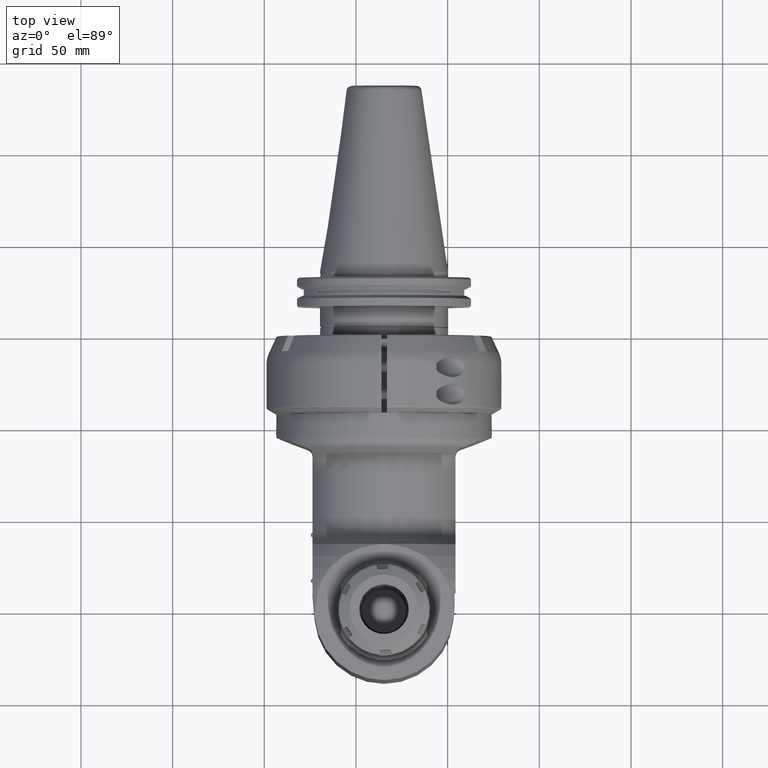
[diagram: clean part render]
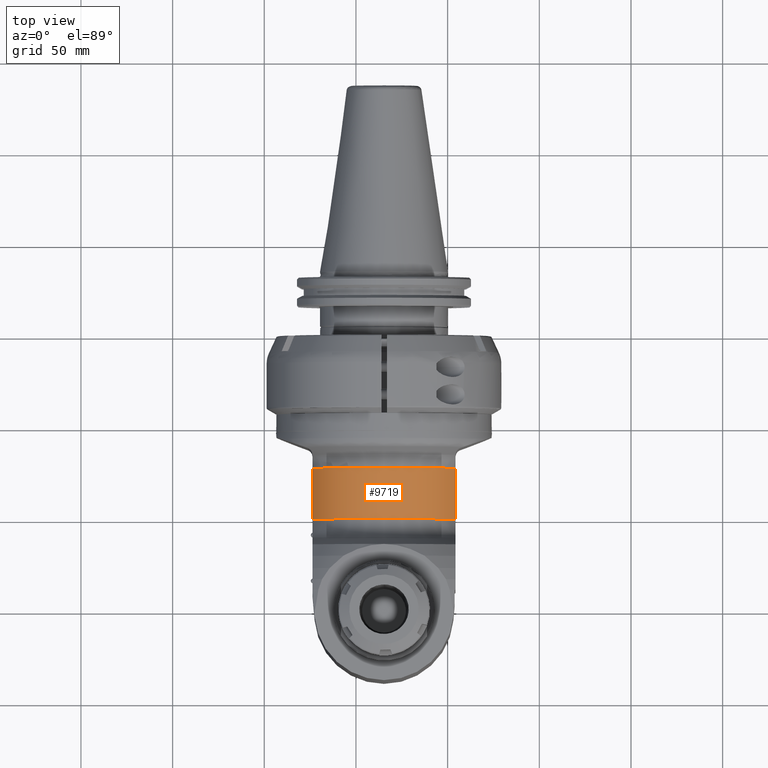
[diagram: same view with one face highlighted and labeled with its STEP entity id]
A machine part, top view. The second image highlights one B-rep face of the part: STEP entity #9719.
In plain terms, the highlighted cylindrical surface (partial cylindrical patch) has radius 42.5 mm, axis along (-0, 1, 0).
Its self-contained STEP definition (entity closure, byte-faithful):
#728=CYLINDRICAL_SURFACE('',#10457,42.5);
#892=FACE_OUTER_BOUND('',#1488,.T.);
#1488=EDGE_LOOP('',(#6531,#6532,#6533,#6534));
#2150=LINE('',#14896,#2784);
#2157=LINE('',#14992,#2791);
#2784=VECTOR('',#11686,27.78976786872);
#2791=VECTOR('',#11703,27.78976786872);
#3428=CIRCLE('',#10451,42.5);
#3433=CIRCLE('',#10458,42.5);
#3994=VERTEX_POINT('',#14867);
#3995=VERTEX_POINT('',#14880);
#3996=VERTEX_POINT('',#14895);
#4018=VERTEX_POINT('',#14991);
#4978=EDGE_CURVE('',#3994,#3995,#3428,.T.);
#4980=EDGE_CURVE('',#3996,#3995,#2150,.T.);
#5003=EDGE_CURVE('',#3994,#4018,#2157,.T.);
#5004=EDGE_CURVE('',#3996,#4018,#3433,.T.);
#6531=ORIENTED_EDGE('',*,*,#4978,.F.);
#6532=ORIENTED_EDGE('',*,*,#5003,.T.);
#6533=ORIENTED_EDGE('',*,*,#5004,.F.);
#6534=ORIENTED_EDGE('',*,*,#4980,.T.);
#9719=ADVANCED_FACE('',(#892),#728,.T.);
#10451=AXIS2_PLACEMENT_3D('',#14881,#11682,#11683);
#10457=AXIS2_PLACEMENT_3D('',#14990,#11701,#11702);
#10458=AXIS2_PLACEMENT_3D('',#14993,#11704,#11705);
#11682=DIRECTION('center_axis',(-1.,0.,0.));
#11683=DIRECTION('ref_axis',(0.,-0.397396370683616,-0.917647058823538));
#11686=DIRECTION('',(-1.,0.,0.));
#11701=DIRECTION('center_axis',(-1.,0.,0.));
#11702=DIRECTION('ref_axis',(0.,-1.,3.21624529935327E-16));
#11703=DIRECTION('',(1.,0.,0.));
#11704=DIRECTION('center_axis',(1.,0.,0.));
#11705=DIRECTION('ref_axis',(0.,-1.,0.));
#14867=CARTESIAN_POINT('',(31.79063844602,-16.88934575405,-39.));
#14880=CARTESIAN_POINT('',(31.79063844602,-16.88934575405,39.));
#14881=CARTESIAN_POINT('Origin',(31.79063844602,0.,0.));
#14895=CARTESIAN_POINT('',(59.58040631473,-16.88934575405,39.));
#14896=CARTESIAN_POINT('',(59.58040631473,-16.88934575405,39.));
#14990=CARTESIAN_POINT('Origin',(42.5,0.,0.));
#14991=CARTESIAN_POINT('',(59.58040631473,-16.88934575405,-39.));
#14992=CARTESIAN_POINT('',(31.79063844602,-16.88934575405,-39.));
#14993=CARTESIAN_POINT('Origin',(59.58040631473,0.,0.));